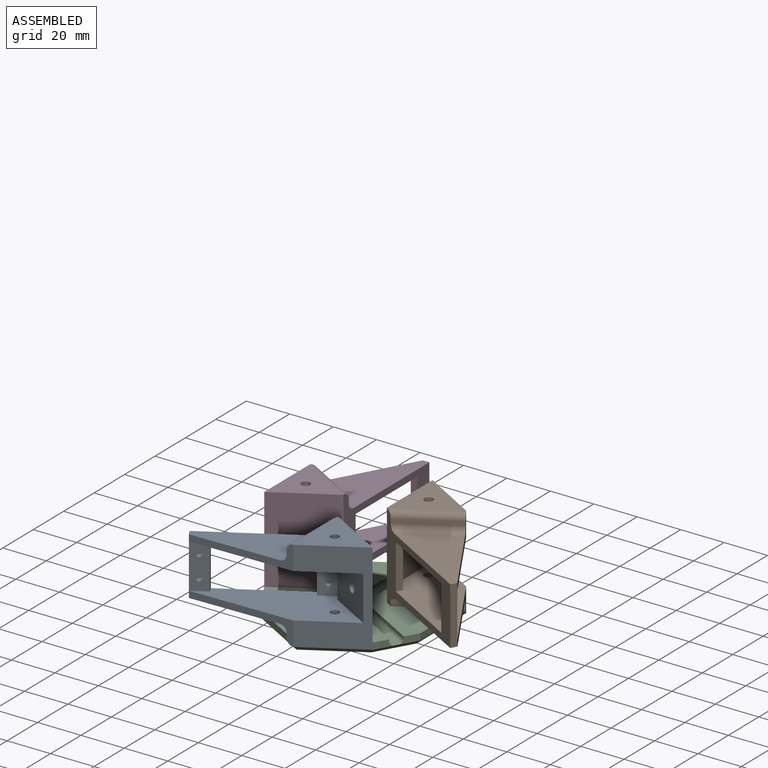
[diagram: assembled view]
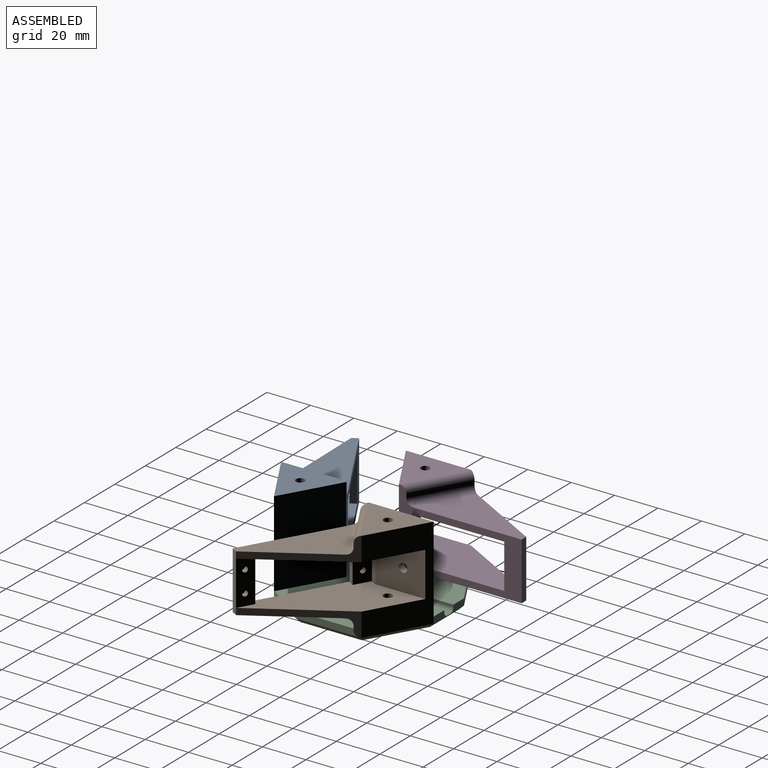
[diagram: assembled view, second angle]
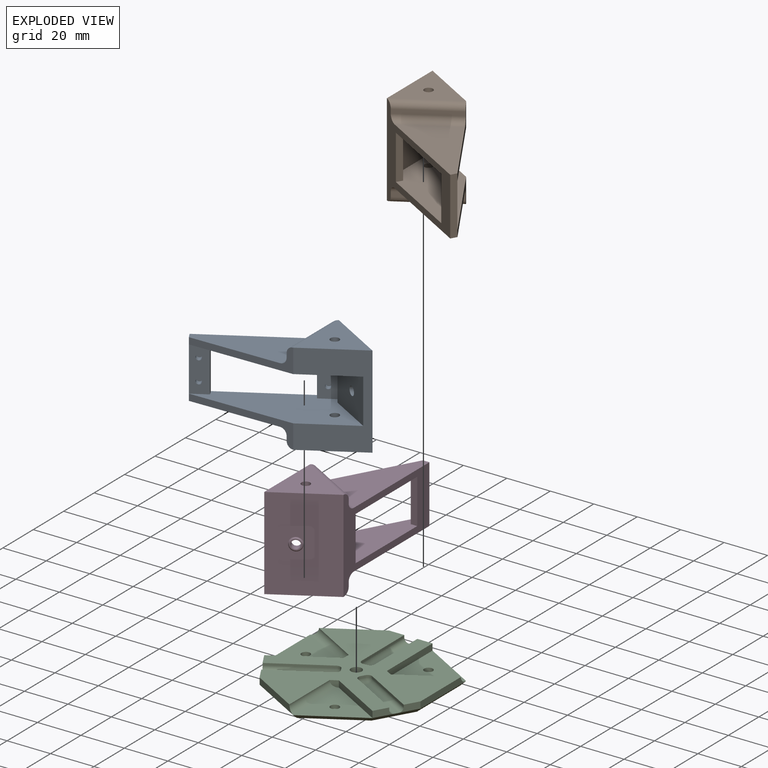
[diagram: exploded view]
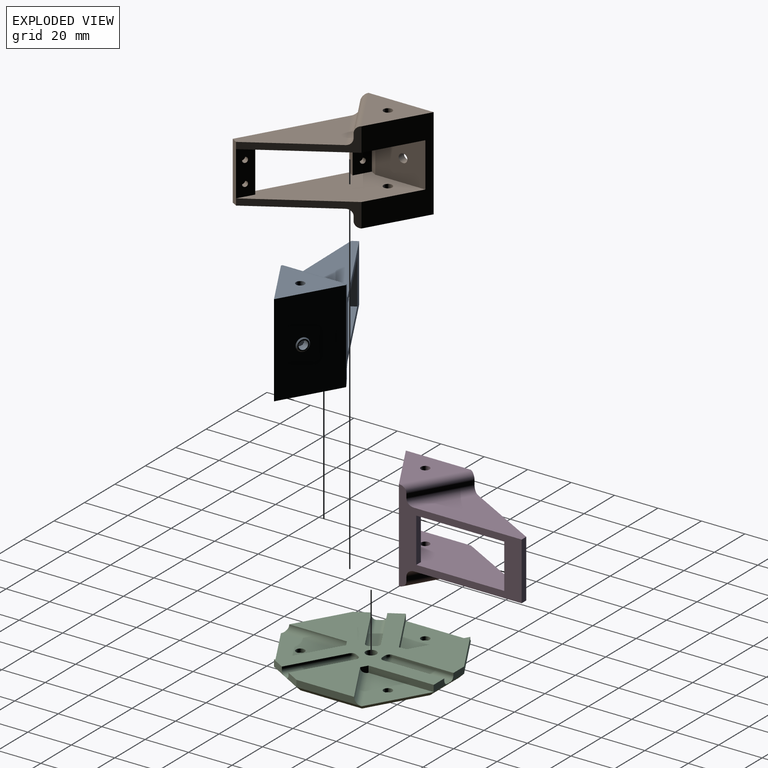
[diagram: exploded view, second angle]
ASSEMBLY  parts=4 mates=3
PART A: 37 faces, bbox 71.5x42.5x27.5 mm
  f0: plane 49.57x23.07mm, normal (0,1,0), area 626.3mm2, adj f9,f15,f24,f34
  f1: plane 20.5x8mm, normal (0,0,1), area 154.2mm2, adj f5,f6,f7,f9,f11,f12
  f2: plane 20.5x8mm, normal (0,0,1), area 154.2mm2, adj f3,f5,f7,f10,f13,f14
  f3: plane 20.5x3mm, normal (1,0,0), area 61.5mm2, adj f2,f4,f5,f7
  f4: plane 20.5x19.98mm, normal (0.87,0,0.5), area 460.4mm2, adj f3,f5,f7,f20,f26
  f5: plane 68.04x25.98mm, normal (0,-1,0), area 1045.7mm2, adj f1,f2,f3,f4,f6,f13,f15,f20
  f6: plane 20.5x3mm, normal (-1,0,0), area 61.5mm2, adj f1,f5,f7,f15
  f7: plane 68.04x25.98mm, normal (0,1,0), area 1045.7mm2, adj f1,f2,f3,f4,f6,f13,f15,f20
  f8: plane 49.57x23.07mm, normal (0,-1,0), area 626.3mm2, adj f9,f15,f22,f36
  f9: plane 26.5x3mm, normal (1,0,0), area 79.5mm2, adj f0,f1,f8,f15,f22,f24
  f10: cylinder r=1.25mm len=2.7mm, axis (0,0,-1), area 21.2mm2, adj f2,f18
  f11: cylinder r=1.25mm len=2.7mm, axis (0,0,-1), area 21.2mm2, adj f1,f19
  f12: cylinder r=1.25mm len=2.7mm, axis (0,0,-1), area 21.2mm2, adj f1,f16
  f13: plane 20.5x3mm, normal (1,0,0), area 61.5mm2, adj f2,f5,f7,f15
  f14: cylinder r=1.25mm len=2.7mm, axis (0,0,-1), area 21.2mm2, adj f2,f17
  f15: plane 56.5x42.5mm, normal (0,0,-1), area 722.4mm2, adj f0,f5,f6,f7,f8,f9,f13,f21
  f16: plane 2.5x2.5mm, normal (0,0,1), area 4.9mm2, adj f12
  f17: plane 2.5x2.5mm, normal (0,0,1), area 4.9mm2, adj f14
  f18: plane 2.5x2.5mm, normal (0,0,1), area 4.9mm2, adj f10
  f19: plane 2.5x2.5mm, normal (0,0,1), area 4.9mm2, adj f11
  f20: plane 42.5x30mm, normal (0,0,1), area 731mm2, adj f4,f5,f7,f21,f22,f24,f29,f31
  f21: plane 42.5x25.98mm, normal (-0.87,0,-0.5), area 1246.7mm2, adj f15,f20,f28,f29,f31
  f22: plane 41.5x22.98mm, normal (0.48,0,0.87), area 166.3mm2, adj f7,f8,f9,f20,f30,f35,f36
  f23: cylinder r=2mm len=11mm, axis (0,1,0), area 138.2mm2, adj f7,f29
  f24: plane 41.5x22.98mm, normal (0.48,0,0.87), area 166.3mm2, adj f0,f5,f9,f20,f32,f33,f34
  f25: cylinder r=2mm len=11mm, axis (0,-1,0), area 138.2mm2, adj f5,f31
  f26: cylinder r=2mm len=5.21mm, axis (0.87,0,0.5), area 44mm2, adj f4,f27
  f27: plane 5x4.33mm, normal (-0.87,0,-0.5), area 7.1mm2, adj f26,f28
  f28: cone r=2.5mm half-angle=45deg, axis (0.87,0,0.5), area 12.2mm2, adj f21,f27
  f29: plane 30x25.98mm, normal (0,-1,0), area 377.1mm2, adj f20,f21,f23,f35
  f30: plane 24.53x14.16mm, normal (0.87,0,-0.5), area 56.6mm2, adj f15,f22,f35,f36
  f31: plane 30x25.98mm, normal (0,1,0), area 377.1mm2, adj f20,f21,f25,f33
  f32: plane 24.53x14.16mm, normal (0.87,0,-0.5), area 56.6mm2, adj f15,f24,f33,f34
  f33: cylinder r=3mm len=27.53mm, axis (0.5,0,0.87), area 136.3mm2, adj f15,f24,f31,f32
  f34: cylinder r=3mm len=26.07mm, axis (-0.5,0,-0.87), area 130.6mm2, adj f0,f15,f24,f32
  f35: cylinder r=3mm len=27.53mm, axis (-0.5,0,-0.87), area 136.3mm2, adj f15,f22,f29,f30
  f36: cylinder r=3mm len=26.07mm, axis (0.5,0,0.87), area 130.6mm2, adj f8,f15,f22,f30
PART B: same geometry as A
PART C: 73 faces, bbox 73.5x77.3x5 mm
  f0: plane 7.79x4.5mm, normal (0.87,-0.5,0), area 21.9mm2, adj f12,f26,f27,f29,f68
  f1: plane 7.79x4.5mm, normal (-0.87,-0.5,0), area 21.9mm2, adj f12,f39,f40,f42,f63
  f2: plane 9x3mm, normal (0,1,0), area 21.9mm2, adj f12,f13,f14,f16,f69
  f3: plane 3.46x3mm, normal (-1,0,0), area 8.2mm2, adj f12,f39,f41
  f4: plane 30x25.98mm, normal (0,0,1), area 377.1mm2, adj f8,f13,f15,f71
  f5: plane 28x2mm, normal (0,0,1), area 56mm2, adj f16,f17,f60,f69
  f6: plane 9x3mm, normal (0,1,0), area 21.9mm2, adj f11,f12,f17,f35,f69
  f7: plane 30x3mm, normal (1,0,0), area 81.8mm2, adj f12,f15,f20,f70
  f8: cylinder r=2mm len=4mm, axis (0,0,-1), area 21.4mm2, adj f4,f10
  f9: plane 73.01x67.96mm, normal (0,0,-1), area 3844.8mm2, adj f63,f64,f65,f66,f67,f68,f69,f70
  f10: plane 4x4mm, normal (0,0,1), area 12.6mm2, adj f8
  f11: plane 28x1mm, normal (1,0,0), area 28mm2, adj f6,f12,f17,f62
  f12: plane 75.59x71.96mm, normal (0,0,1), area 2333.4mm2, adj f0,f1,f2,f3,f6,f7,f11,f13
  f13: plane 30x3mm, normal (1,0,0), area 90mm2, adj f2,f4,f12,f21
  f14: plane 28x1mm, normal (-1,0,0), area 28mm2, adj f2,f12,f16,f58
  f15: cylinder r=3mm len=27.48mm, axis (0.87,0.5,0), area 131mm2, adj f4,f7,f12,f21
  f16: cylinder r=2mm len=28mm, axis (0,1,0), area 88mm2, adj f2,f5,f14,f59
  f17: cylinder r=2mm len=28mm, axis (0,-1,0), area 88mm2, adj f5,f6,f11,f61
  f18: plane 30x25.98mm, normal (0,0,1), area 377.1mm2, adj f23,f26,f28,f66
  f19: plane 25.25x15.73mm, normal (0,0,1), area 56mm2, adj f29,f30,f55,f68
  f20: plane 7.79x4.5mm, normal (0.87,-0.5,0), area 21.9mm2, adj f7,f12,f25,f30,f68
  f21: plane 3x3mm, normal (0.5,0.87,0), area 8.2mm2, adj f12,f13,f15
  f22: plane 25.98x15mm, normal (-0.5,-0.87,0), area 81.8mm2, adj f12,f28,f33,f64
  f23: cylinder r=2mm len=4mm, axis (0,0,-1), area 21.4mm2, adj f18,f24
  f24: plane 4x4mm, normal (0,0,1), area 12.6mm2, adj f23
  f25: plane 24.25x14mm, normal (-0.5,-0.87,0), area 28mm2, adj f12,f20,f30,f57
  f26: plane 25.98x15mm, normal (-0.5,-0.87,0), area 90mm2, adj f0,f12,f18,f34
  f27: plane 24.25x14mm, normal (0.5,0.87,0), area 28mm2, adj f0,f12,f29,f53
  f28: cylinder r=3mm len=30mm, axis (0,-1,0), area 131mm2, adj f12,f18,f22,f34
  f29: cylinder r=2mm len=25.25mm, axis (0.87,-0.5,0), area 88mm2, adj f0,f19,f27,f54
  f30: cylinder r=2mm len=25.25mm, axis (-0.87,0.5,0), area 88mm2, adj f19,f20,f25,f56
  f31: plane 30x25.98mm, normal (0,0,1), area 377.1mm2, adj f36,f39,f41,f65
  f32: plane 25.25x15.73mm, normal (0,0,1), area 56mm2, adj f42,f43,f50,f63
  f33: plane 7.79x4.5mm, normal (-0.87,-0.5,0), area 21.9mm2, adj f12,f22,f38,f43,f63
  f34: plane 3x3mm, normal (0.5,-0.87,0), area 8.2mm2, adj f12,f26,f28
  f35: plane 25.98x15mm, normal (-0.5,0.87,0), area 81.8mm2, adj f6,f12,f41,f67
  f36: cylinder r=2mm len=4mm, axis (0,0,-1), area 21.4mm2, adj f31,f37
  f37: plane 4x4mm, normal (0,0,1), area 12.6mm2, adj f36
  f38: plane 24.25x14mm, normal (-0.5,0.87,0), area 28mm2, adj f12,f33,f43,f52
  f39: plane 25.98x15mm, normal (-0.5,0.87,0), area 90mm2, adj f1,f3,f12,f31
  f40: plane 24.25x14mm, normal (0.5,-0.87,0), area 28mm2, adj f1,f12,f42,f48
  f41: cylinder r=3mm len=27.48mm, axis (-0.87,0.5,0), area 131mm2, adj f3,f12,f31,f35
  f42: cylinder r=2mm len=25.25mm, axis (-0.87,-0.5,0), area 88mm2, adj f1,f32,f40,f49
  f43: cylinder r=2mm len=25.25mm, axis (0.87,0.5,0), area 88mm2, adj f32,f33,f38,f51
  f44: plane 2x1mm, normal (0,1,0), area 2mm2, adj f12,f58,f60,f62
  f45: plane 1.73x1mm, normal (-0.87,-0.5,0), area 2mm2, adj f12,f48,f50,f52
  f46: cylinder r=2.5mm len=5mm, axis (0,0,-1), area 73.8mm2, adj f12,f72
  f47: plane 1.73x1mm, normal (0.87,-0.5,0), area 2mm2, adj f12,f53,f55,f57
  f48: cylinder r=2mm len=2.73mm, axis (0,0,-1), area 3.1mm2, adj f12,f40,f45,f49
  f49: sphere r=2mm, area 6.3mm2, adj f42,f48,f50
  f50: cylinder r=2mm len=2.73mm, axis (0.5,-0.87,0), area 6.3mm2, adj f32,f45,f49,f51
  f51: sphere r=2mm, area 6.3mm2, adj f43,f50,f52
  f52: cylinder r=2mm len=2.73mm, axis (0,0,1), area 3.1mm2, adj f12,f38,f45,f51
  f53: cylinder r=2mm len=2.73mm, axis (0,0,-1), area 3.1mm2, adj f12,f27,f47,f54
  f54: sphere r=2mm, area 6.3mm2, adj f29,f53,f55
  f55: cylinder r=2mm len=2.73mm, axis (0.5,0.87,0), area 6.3mm2, adj f19,f47,f54,f56
  f56: sphere r=2mm, area 6.3mm2, adj f30,f55,f57
  f57: cylinder r=2mm len=2.73mm, axis (0,0,1), area 3.1mm2, adj f12,f25,f47,f56
  f58: cylinder r=2mm len=2mm, axis (0,0,-1), area 3.1mm2, adj f12,f14,f44,f59
  f59: sphere r=2mm, area 6.3mm2, adj f16,f58,f60
  f60: cylinder r=2mm len=2mm, axis (-1,0,0), area 6.3mm2, adj f5,f44,f59,f61
  f61: sphere r=2mm, area 6.3mm2, adj f17,f60,f62
  f62: cylinder r=2mm len=2mm, axis (0,0,1), area 3.1mm2, adj f11,f12,f44,f61
  f63: plane 17.86x11.46mm, normal (-0.61,-0.35,-0.71), area 55.1mm2, adj f1,f9,f32,f33,f64,f65
  f64: plane 25.98x16.46mm, normal (-0.35,-0.61,-0.71), area 82.5mm2, adj f9,f22,f63,f66
  f65: plane 30x2mm, normal (-0.71,0,-0.71), area 82.5mm2, adj f9,f31,f63,f67
  f66: plane 25.98x16.46mm, normal (0.35,-0.61,-0.71), area 82.5mm2, adj f9,f18,f64,f68
  f67: plane 26.52x16.15mm, normal (-0.35,0.61,-0.71), area 82.5mm2, adj f9,f35,f65,f69
  f68: plane 17.86x11.46mm, normal (0.61,-0.35,-0.71), area 55.1mm2, adj f0,f9,f19,f20,f66,f70
  f69: plane 20x2mm, normal (0,0.71,-0.71), area 55.1mm2, adj f2,f5,f6,f9,f67,f71
  f70: plane 30x2mm, normal (0.71,0,-0.71), area 82.5mm2, adj f7,f9,f68,f71
  f71: plane 26.52x16.15mm, normal (0.35,0.61,-0.71), area 82.5mm2, adj f4,f9,f69,f70
  f72: plane 5x5mm, normal (0,0,1), area 19.6mm2, adj f46
PART D: same geometry as A
PLACE A rot(axis=(-0.19,0.69,-0.69),158.9deg) t=(-23.82,-31.18,7.93)mm
PLACE B rot(axis=(-0.94,0.25,-0.25),93.8deg) t=(35.11,-13.86,7.93)mm
PLACE C t=(0.64,-5.51,-15.32)mm
PLACE D rot(axis=(-0.58,-0.58,0.58),120deg) t=(-9.36,28.51,7.93)mm
MATE fastened D.f23 <-> C.f36  axis (0,0,1) through (-26.68,0.26,-13.32)mm
MATE fastened B.f23 <-> C.f8  axis (0,0,1) through (19.3,15.26,-13.32)mm
MATE fastened A.f23 <-> C.f23  axis (0,0,1) through (9.3,-32.06,-13.32)mm
